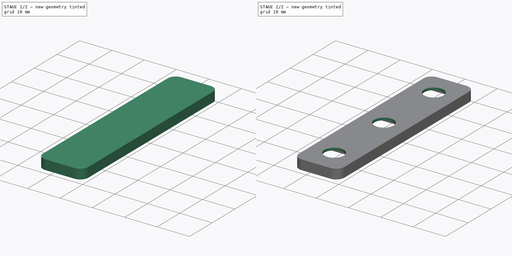
[diagram: build sequence overview — one tinted view per stage of 2, left to right]
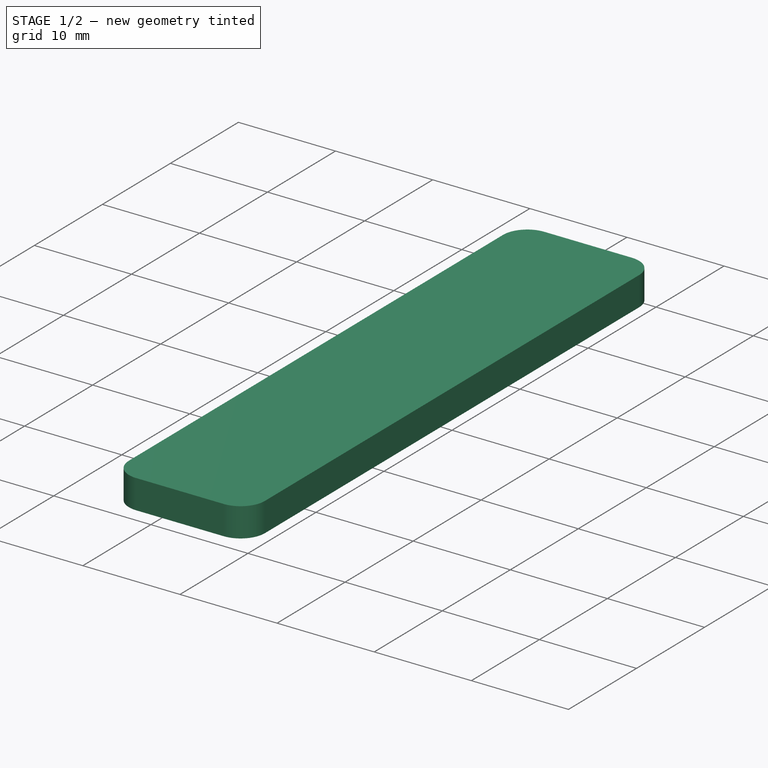
[diagram: stage 1 of 2 — iso view after this stage's code; geometry added in this stage tinted green]
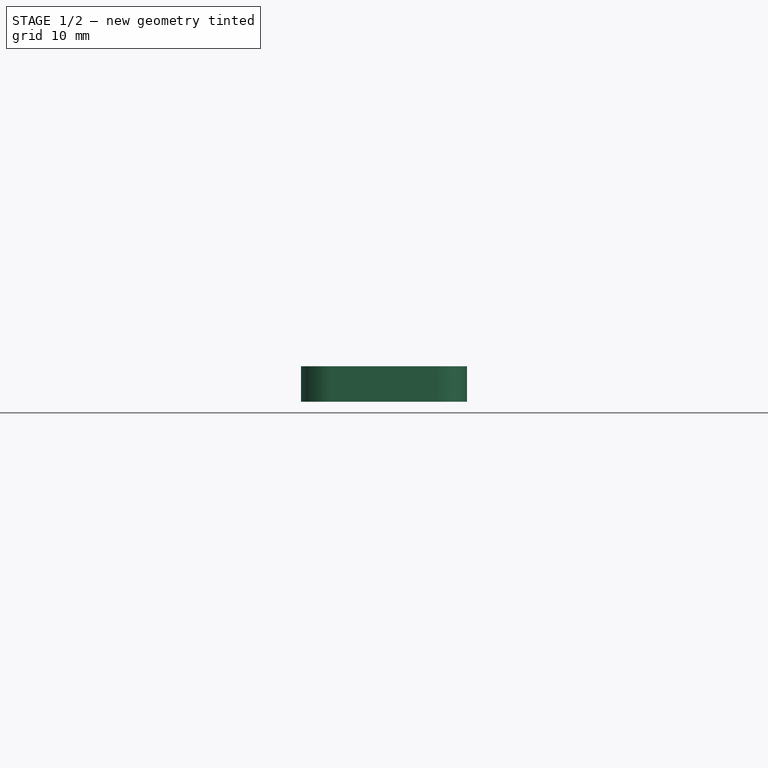
[diagram: stage 1 of 2 — front view after this stage's code; geometry added in this stage tinted green]
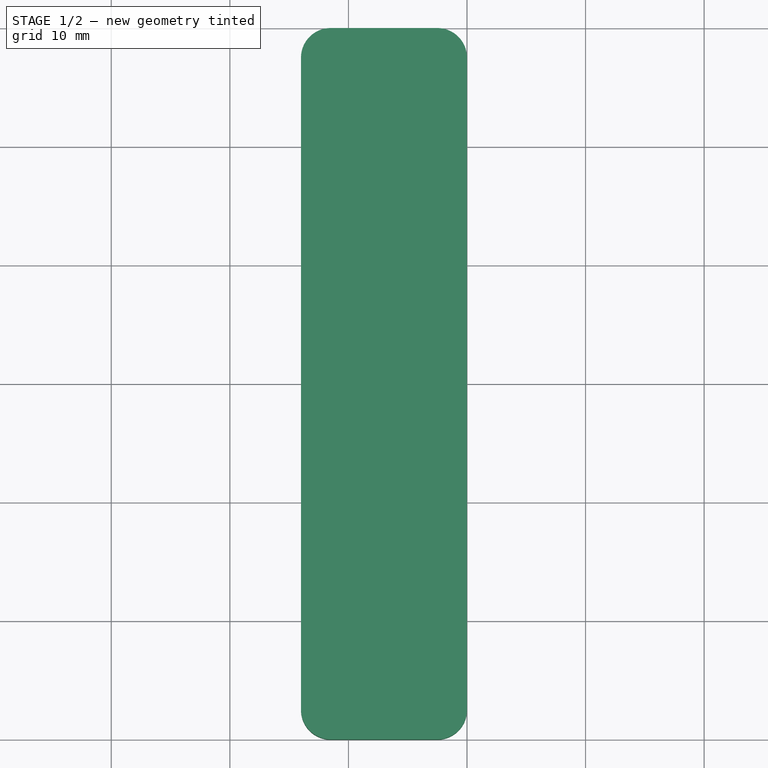
[diagram: stage 1 of 2 — top view after this stage's code; geometry added in this stage tinted green]
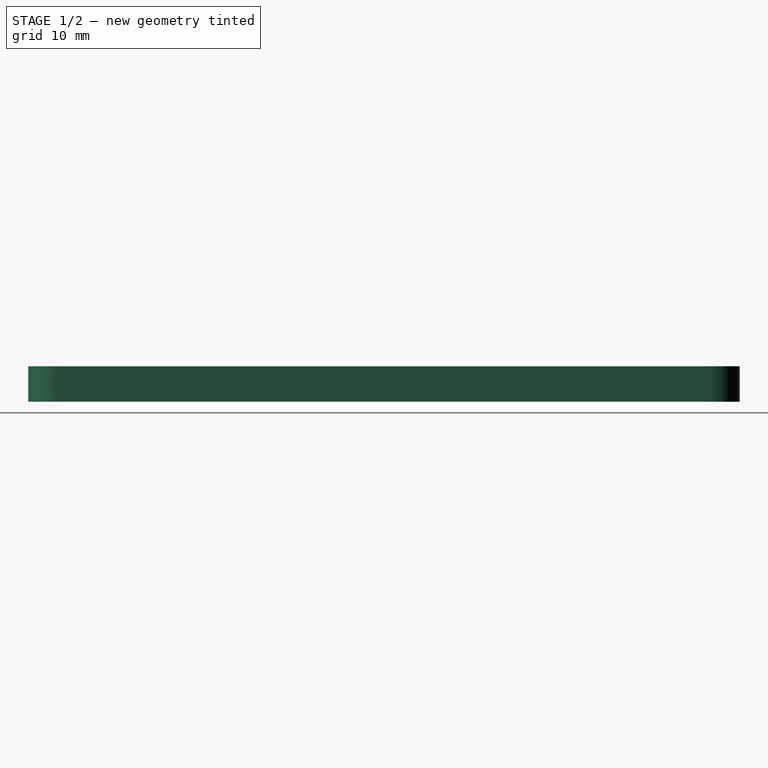
[diagram: stage 1 of 2 — right view after this stage's code; geometry added in this stage tinted green]
FCSTD DOCUMENT  (FreeCAD 1.0R39319 (Git))
Label: m6
License: All rights reserved
LicenseURL: https://en.wikipedia.org/wiki/All_rights_reserved
objects: Sketcher::SketchObject×3, PartDesign::Pad×2, PartDesign::Hole×1, PartDesign::Body×1
note: 16 computed .brp shape members not serialized (recipe doc carries the construction recipe); baked Part::Feature solids carry a one-line shape summary decoded from their .brp

FEATURE [Sketcher::SketchObject] Sketch
  ArcFitTolerance = 1e-06
  AttachmentSupport = -> [XY_Plane]
  FullyConstrained = true
  MakeInternals = false
  MapMode = 5
  sketch-geometry (25):
    g0: LineSegment StartX=-13 StartY=-58 StartZ=0 EndX=-1 EndY=-58 EndZ=0
    g1: LineSegment StartX=-1 StartY=-58 StartZ=0 EndX=-1 EndY=-46 EndZ=0
    g2: LineSegment StartX=-1 StartY=-46 StartZ=0 EndX=-13 EndY=-46 EndZ=0
    g3: LineSegment StartX=-13 StartY=-46 StartZ=0 EndX=-13 EndY=-58 EndZ=0
    g4: GeomPoint X=-7 Y=-52 Z=0
    g5: LineSegment StartX=-13 StartY=-36 StartZ=0 EndX=-1 EndY=-36 EndZ=0
    g6: LineSegment StartX=-1 StartY=-36 StartZ=0 EndX=-1 EndY=-24 EndZ=0
    g7: LineSegment StartX=-1 StartY=-24 StartZ=0 EndX=-13 EndY=-24 EndZ=0
    g8: LineSegment StartX=-13 StartY=-24 StartZ=0 EndX=-13 EndY=-36 EndZ=0
    g9: GeomPoint X=-7 Y=-30 Z=0
    g10: LineSegment StartX=-13 StartY=-14 StartZ=0 EndX=-1 EndY=-14 EndZ=0
    g11: LineSegment StartX=-1 StartY=-14 StartZ=0 EndX=-1 EndY=-2 EndZ=0
    g12: LineSegment StartX=-1 StartY=-2 StartZ=0 EndX=-13 EndY=-2 EndZ=0
    g13: LineSegment StartX=-13 StartY=-2 StartZ=0 EndX=-13 EndY=-14 EndZ=0
    g14: GeomPoint X=-7 Y=-8 Z=0
    g15: LineSegment StartX=-11.5 StartY=-60 StartZ=0 EndX=-2.5 EndY=-60 EndZ=0
    g16: LineSegment StartX=0 StartY=-57.5 StartZ=0 EndX=0 EndY=-2.5 EndZ=0
    g17: LineSegment StartX=-2.5 StartY=0 StartZ=0 EndX=-11.5 EndY=0 EndZ=0
    g18: LineSegment StartX=-14 StartY=-2.5 StartZ=0 EndX=-14 EndY=-57.5 EndZ=0
    g19: ArcOfCircle CenterX=-11.5 CenterY=-57.5 CenterZ=0 NormalX=0 NormalY=0 NormalZ=1 AngleXU=0 Radius=2.5 StartAngle=3.14159 EndAngle=4.71239
    g20: ArcOfCircle CenterX=-2.5 CenterY=-57.5 CenterZ=0 NormalX=0 NormalY=0 NormalZ=1 AngleXU=0 Radius=2.5 StartAngle=4.71239 EndAngle=6.28319
    g21: ArcOfCircle CenterX=-2.5 CenterY=-2.5 CenterZ=0 NormalX=0 NormalY=0 NormalZ=1 AngleXU=0 Radius=2.5 StartAngle=0 EndAngle=1.5708
    g22: ArcOfCircle CenterX=-11.5 CenterY=-2.5 CenterZ=0 NormalX=0 NormalY=0 NormalZ=1 AngleXU=0 Radius=2.5 StartAngle=1.5708 EndAngle=3.14159
    g23: GeomPoint [constr] X=-14 Y=-60 Z=0
    g24: GeomPoint [constr] X=0 Y=0 Z=0
  constraints (66):
    c: Coincident(g0,g1)
    c: Coincident(g1,g2)
    c: Coincident(g2,g3)
    c: Coincident(g3,g0)
    c: Horizontal(g0)
    c: Horizontal(g2)
    c: Vertical(g1)
    c: Vertical(g3)
    c: Distance(g1,g3) = 12
    c: Distance(g0,g2) = 12
    c: DistanceX(g2,g4) = 6
    c: DistanceY(g0,g4) = 6
    c: Coincident(g5,g6)
    c: Coincident(g6,g7)
    c: Coincident(g7,g8)
    c: Coincident(g8,g5)
    c: Horizontal(g5)
    c: Horizontal(g7)
    c: Vertical(g6)
    c: Vertical(g8)
    c: Distance(g6,g8) = 12
    c: Distance(g5,g7) = 12
    c: DistanceX(g7,g9) = 6
    c: DistanceY(g5,g9) = 6
    c: Coincident(g10,g11)
    c: Coincident(g11,g12)
    c: Coincident(g12,g13)
    c: Coincident(g13,g10)
    c: Horizontal(g10)
    c: Horizontal(g12)
    c: Vertical(g11)
    c: Vertical(g13)
    c: Distance(g11,g13) = 12
    c: Distance(g10,g12) = 12
    c: DistanceX(g12,g14) = 6
    c: DistanceY(g10,g14) = 6
    c: Vertical(g14,g9)
    c: Vertical(g9,g4)
    c: DistanceY(g9,g14) = 22
    c: DistanceY(g4,g9) = 22
    c: Tangent(g15,g19) = -1.5708
    c: Tangent(g15,g20) = -1.5708
    c: Tangent(g16,g20) = -1.5708
    c: Tangent(g16,g21) = -1.5708
    c: Tangent(g17,g21) = -1.5708
    c: Tangent(g17,g22) = -1.5708
    c: Tangent(g18,g22) = -1.5708
    c: Tangent(g18,g19) = -1.5708
    c: Horizontal(g15)
    c: Horizontal(g17)
    c: Vertical(g16)
    c: Vertical(g18)
    c: Equal(g19,g20)
    c: Equal(g20,g21)
    c: Equal(g21,g22)
    c: PointOnObject(g23,g15)
    c: PointOnObject(g23,g18)
    c: PointOnObject(g24,g16)
    c: PointOnObject(g24,g17)
    c: Distance(g16,g18) = 14
    c: Distance(g15,g17) = 60
    c: Radius(g20) = 2.5
    c: DistanceY(g9,g17) = 30
    c: DistanceX(g9,g16) = 7
    c: DistanceX(g24,g-1) = 0
    c: DistanceY(g24,g-1) = 0
FEATURE [PartDesign::Pad] Pad
  Direction = (0,0,1)
  Length = 3
  Length2 = 10
  Profile = -> Sketch
  ReferenceAxis = -> Sketch [N_Axis]
  Refine = true
  Suppressed = false
  Type = 0
FEATURE [Sketcher::SketchObject] Sketch001
  ArcFitTolerance = 1e-06
  AttachmentSupport = -> [Pad]
  FullyConstrained = false
  MakeInternals = false
  MapMode = 5
  Placement = pos=(0,0,3) rot=(0,0,1;0rad)
  sketch-geometry (4):
    g0: LineSegment StartX=-0.73 StartY=-58.4736 StartZ=0 EndX=-0.73 EndY=-1 EndZ=0
    g1: LineSegment StartX=-0.73 StartY=-1 StartZ=0 EndX=-13.1577 EndY=-1 EndZ=0
    g2: LineSegment StartX=-13.1577 StartY=-1 StartZ=0 EndX=-13.1577 EndY=-58.4736 EndZ=0
    g3: LineSegment StartX=-13.1577 StartY=-58.4736 StartZ=0 EndX=-0.73 EndY=-58.4736 EndZ=0
  constraints (10):
    c: Coincident(g0,g1)
    c: Coincident(g1,g2)
    c: Coincident(g2,g3)
    c: Coincident(g3,g0)
    c: Vertical(g0)
    c: Vertical(g2)
    c: Horizontal(g1)
    c: Horizontal(g3)
    c: DistanceX(g0,g-1) = 0.73
    c: DistanceY(g0,g-1) = 1
FEATURE [PartDesign::Pad] Pad001
  BaseFeature = -> Pad
  Direction = (0,0,1)
  Length = 0.75
  Length2 = 10
  Profile = -> Sketch001
  ReferenceAxis = -> Sketch001 [N_Axis]
  Refine = true
  Reversed = true
  Suppressed = false
  Type = 0
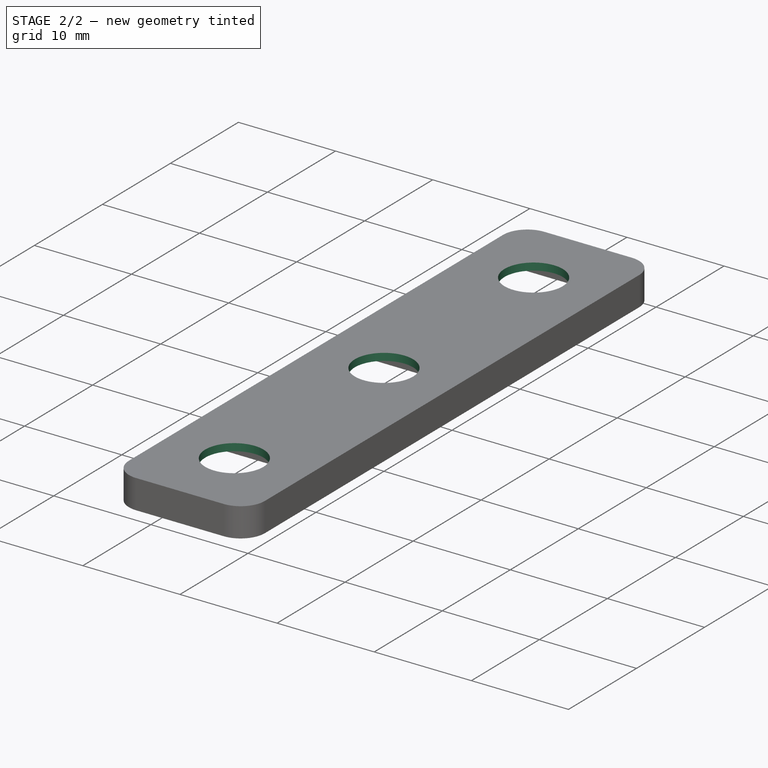
[diagram: stage 2 of 2 — iso view after this stage's code; geometry added in this stage tinted green]
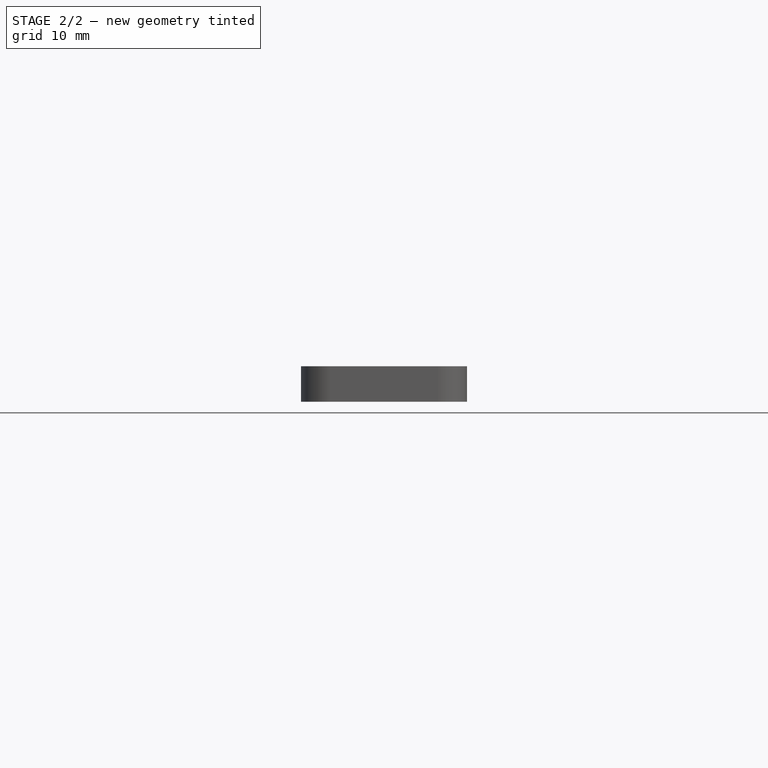
[diagram: stage 2 of 2 — front view after this stage's code; geometry added in this stage tinted green]
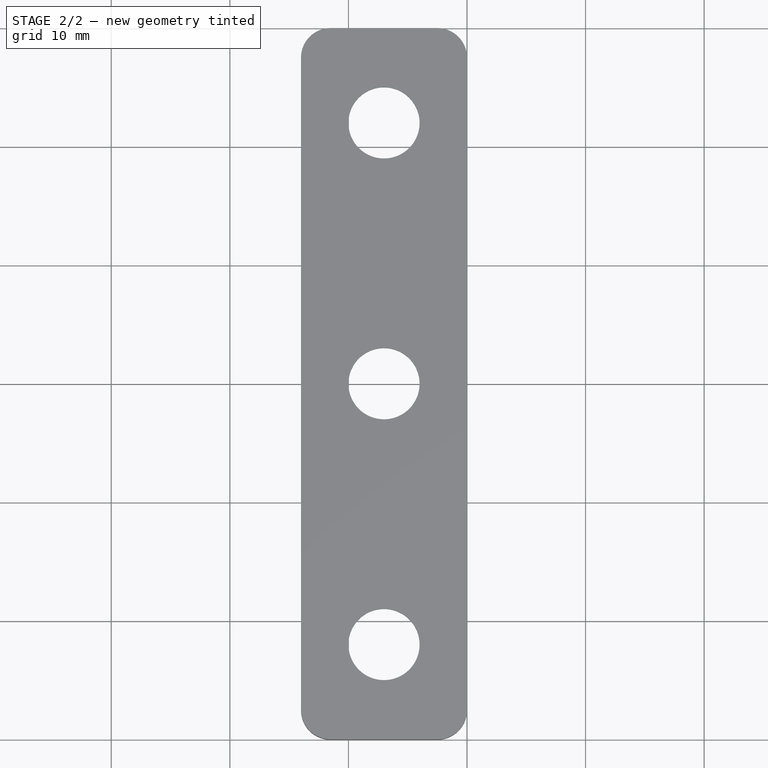
[diagram: stage 2 of 2 — top view after this stage's code; geometry added in this stage tinted green]
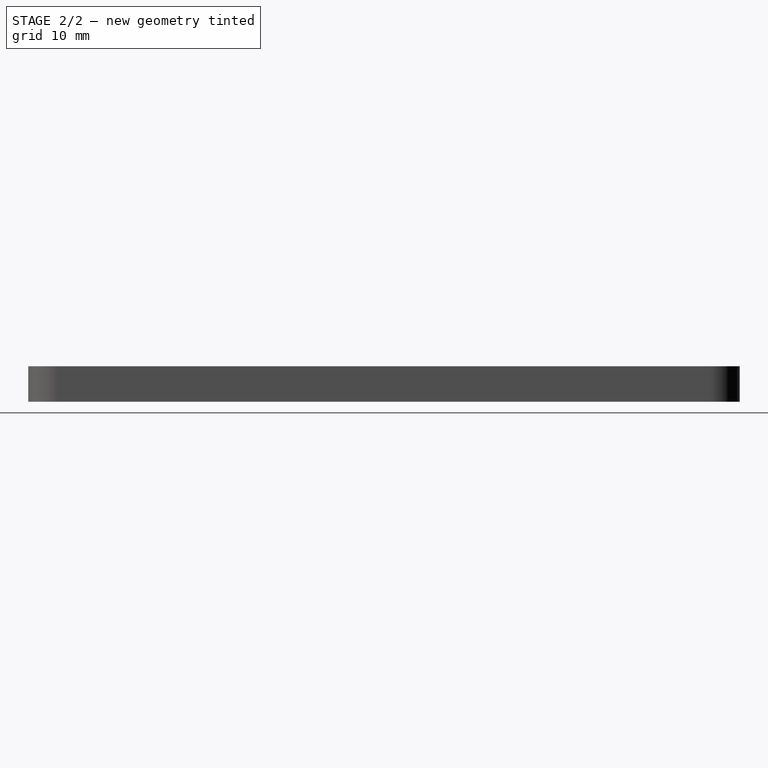
[diagram: stage 2 of 2 — right view after this stage's code; geometry added in this stage tinted green]
FEATURE [Sketcher::SketchObject] Sketch002
  ArcFitTolerance = 1e-06
  AttachmentSupport = -> [Pad001]
  FullyConstrained = true
  MakeInternals = false
  MapMode = 5
  Placement = pos=(0,0,2.25) rot=(1,0,0;3.14159rad)
  sketch-geometry (3):
    g0: Circle CenterX=-7 CenterY=30 CenterZ=0 NormalX=0 NormalY=0 NormalZ=1 AngleXU=0 Radius=3.5
    g1: Circle CenterX=-7 CenterY=52 CenterZ=0 NormalX=0 NormalY=0 NormalZ=1 AngleXU=0 Radius=3.5
    g2: Circle CenterX=-7 CenterY=8 CenterZ=0 NormalX=0 NormalY=0 NormalZ=1 AngleXU=0 Radius=3.5
  constraints (9):
    c: Diameter(g0) = 7
    c: Diameter(g1) = 7
    c: Diameter(g2) = 7
    c: Vertical(g1,g0)
    c: Vertical(g2,g0)
    c: DistanceY(g0,g1) = 22
    c: DistanceY(g2,g0) = 22
    c: DistanceX(g2,g-1) = 7
    c: DistanceY(g-1,g2) = 8
FEATURE [PartDesign::Hole] Hole
  BaseFeature = -> Pad001
  CustomThreadClearance = 0
  Depth = 25
  DepthType = 0
  Diameter = 6
  DrillForDepth = false
  DrillPoint = 1
  DrillPointAngle = 118
  HoleCutCountersinkAngle = 90
  HoleCutCustomValues = false
  HoleCutDepth = 0
  HoleCutDiameter = 6.1
  HoleCutType = 0
  ModelThread = false
  Profile = -> Sketch002
  Refine = true
  Suppressed = false
  Tapered = false
  TaperedAngle = 90
  ThreadClass = 0
  ThreadDepth = 25
  ThreadDepthType = 0
  ThreadDirection = 0
  ThreadFit = 0
  ThreadSize = 0
  ThreadType = 0
  Threaded = false
  UseCustomThreadClearance = false
FEATURE [PartDesign::Body] Body
  AllowCompound = false
  Group = -> [Sketch,Pad,Sketch001,Pad001,Sketch002,Hole]
  Origin = -> Origin
  Tip = -> Hole
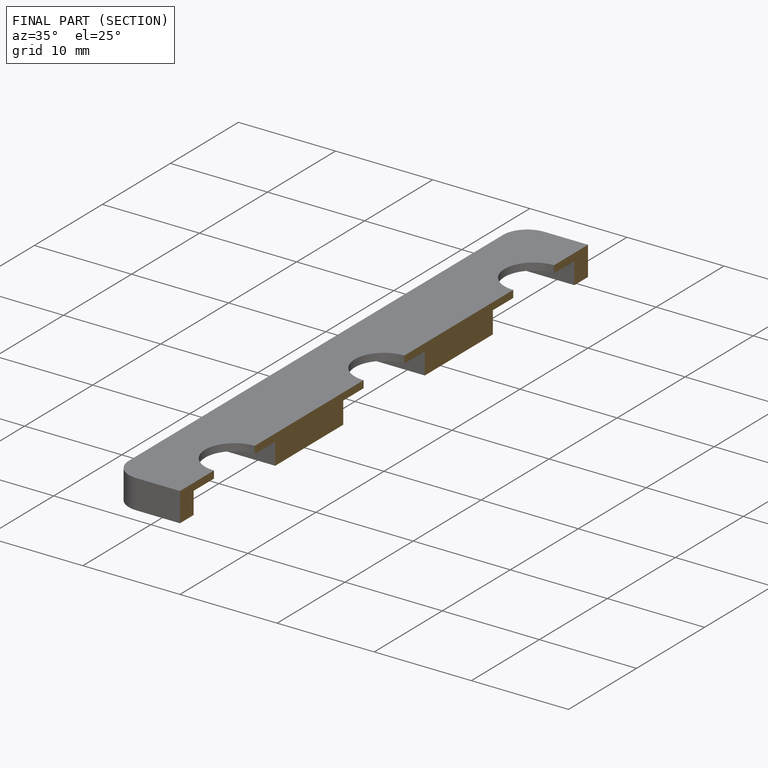
[diagram: finished part — half-section view (interior)]
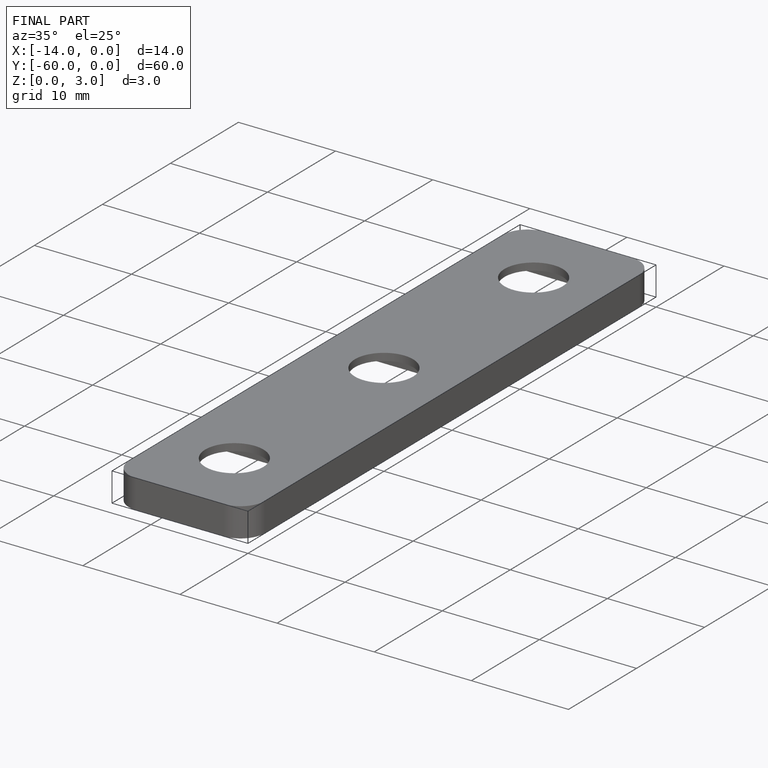
[diagram: finished part — iso view with bounding-box wireframe]
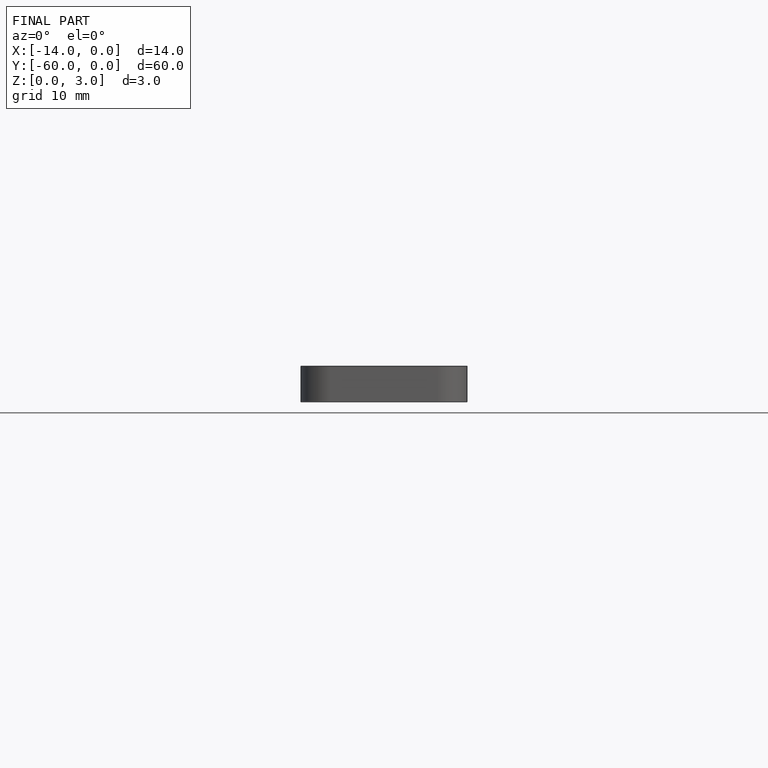
[diagram: finished part — front view with bounding-box wireframe]
